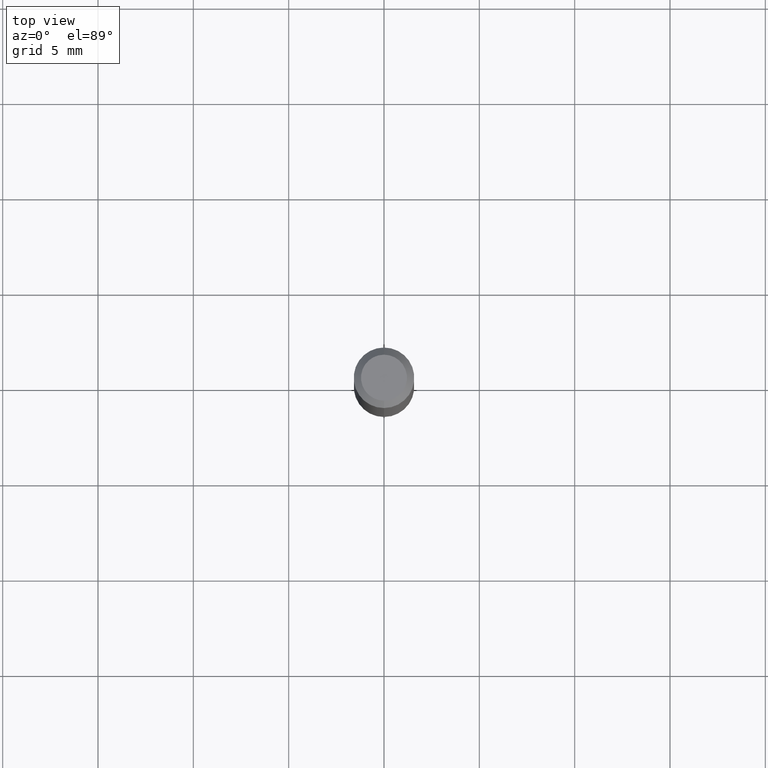
[diagram: clean part render]
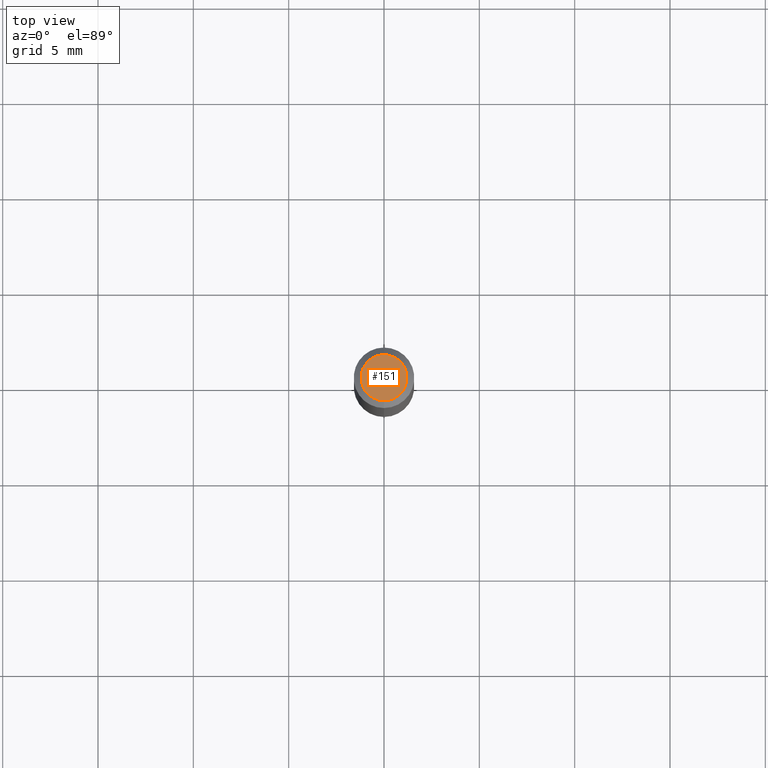
[diagram: same view with one face highlighted and labeled with its STEP entity id]
A machine part, top view. The second image highlights one B-rep face of the part: STEP entity #151.
In plain terms, the highlighted planar face has unit normal (0, -0, -1).
Its self-contained STEP definition (entity closure, byte-faithful):
#12 = CIRCLE ( 'NONE', #125, 0.04749999999999999362 ) ;
#55 = CARTESIAN_POINT ( 'NONE',  ( 3.840629472727447874E-16, 0.04749999999999999362, -1.947592745229184365E-16 ) ) ;
#76 = VERTEX_POINT ( 'NONE', #327 ) ;
#125 = AXIS2_PLACEMENT_3D ( 'NONE', #165, #473, #409 ) ;
#136 = AXIS2_PLACEMENT_3D ( 'NONE', #317, #504, #355 ) ;
#151 = ADVANCED_FACE ( 'NONE', ( #448 ), #451, .F. ) ;
#155 = VERTEX_POINT ( 'NONE', #55 ) ;
#165 = CARTESIAN_POINT ( 'NONE',  ( 7.070678428697980061E-46, -1.009510920098064023E-31, -2.891346398802752133E-17 ) ) ;
#317 = CARTESIAN_POINT ( 'NONE',  ( 7.070678428697980061E-46, -1.009510920098064023E-31, -2.891346398802752133E-17 ) ) ;
#327 = CARTESIAN_POINT ( 'NONE',  ( -3.773273898774340269E-16, -0.04749999999999999362, 1.369323465468633569E-16 ) ) ;
#343 = ORIENTED_EDGE ( 'NONE', *, *, #462, .T. ) ;
#355 = DIRECTION ( 'NONE',  ( -6.982962677686266711E-15, -1.000000000000000000, 3.491490748102966745E-15 ) ) ;
#376 = EDGE_LOOP ( 'NONE', ( #343, #486 ) ) ;
#397 = CIRCLE ( 'NONE', #136, 0.04749999999999999362 ) ;
#409 = DIRECTION ( 'NONE',  ( -6.982962677686266711E-15, -1.000000000000000000, 3.491490748102966745E-15 ) ) ;
#421 = CARTESIAN_POINT ( 'NONE',  ( 3.316907271900976096E-16, 0.04749999999999999362, -1.803025425289046297E-16 ) ) ;
#448 = FACE_OUTER_BOUND ( 'NONE', #376, .T. ) ;
#451 = PLANE ( 'NONE',  #491 ) ;
#461 = DIRECTION ( 'NONE',  ( 2.445462235734121034E-29, -3.491490748102966351E-15, -1.000000000000000000 ) ) ;
#462 = EDGE_CURVE ( 'NONE', #155, #76, #397, .T. ) ;
#473 = DIRECTION ( 'NONE',  ( -2.445462235734121314E-29, 3.491490748102966351E-15, 1.000000000000000000 ) ) ;
#486 = ORIENTED_EDGE ( 'NONE', *, *, #490, .T. ) ;
#490 = EDGE_CURVE ( 'NONE', #76, #155, #12, .T. ) ;
#491 = AXIS2_PLACEMENT_3D ( 'NONE', #421, #461, #496 ) ;
#496 = DIRECTION ( 'NONE',  ( 6.982962677686265922E-15, 1.000000000000000000, -3.491490748102966351E-15 ) ) ;
#504 = DIRECTION ( 'NONE',  ( -2.445462235734121314E-29, 3.491490748102966351E-15, 1.000000000000000000 ) ) ;